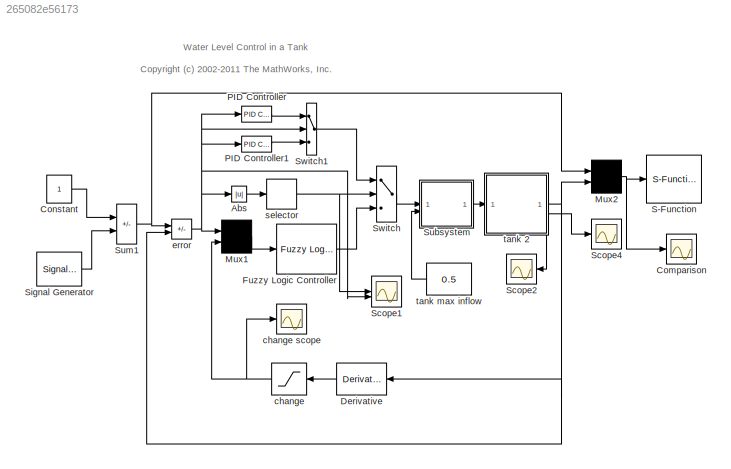
MODEL slx_265082e56173
KIND model
CONFIG AbsTol = 1e-6
CONFIG EnableMultiTasking = off
CONFIG FixedStep = auto
CONFIG MaxStep = 0.2
CONFIG MinStep = auto
CONFIG PreLoadFcn = tank=readfis('tank');
CONFIG RelTol = 1e-3
CONFIG SampleTimeConstraint = Unconstrained
CONFIG SolverName = ode45
CONFIG StartTime = 0
CONFIG StopTime = 10000
BLOCK [Abs] Abs
  SaturateOnIntegerOverflow = off
BLOCK [Scope] Comparison
  Floating = off
  NumInputPorts = 1
  ScopeSpecificationString = Simulink.scopes.TimeScopeBlockCfg('CurrentConfiguration', extmgr.ConfigurationSet(extmgr.Configuration('Core','General UI',true),extmgr.Configuration('Core','Source UI',true),extmgr.Configuration('Sources','WiredSimulink',true,'DataLoggingSaveFormat','Array','DataLoggingLimitDataPoints',true,'DataLoggingDecimation','1','DataLoggingDecimateData',true),extmgr.Configuration('Visuals','Time Domain',tr...<+2284ch>
BLOCK [Constant] Constant
BLOCK [Derivative] Derivative
BLOCK [Reference] Fuzzy Logic Controller  REF=fuzblock/Fuzzy Logic   (lib defined in mdl_858b3b3e7478)
Controller
  SourceBlock = fuzblock/Fuzzy Logic \nController
  SourceType = Fuzzy Inference System
BLOCK [Mux] Mux1
  Inputs = 2
BLOCK [Mux] Mux2
  Inputs = 2
BLOCK [Reference] PID Controller  REF=slpidlib/PID Controller
  SourceBlock = slpidlib/PID Controller
  SourceType = PID 1dof
BLOCK [Reference] PID Controller1  REF=slpidlib/PID Controller
  SourceBlock = slpidlib/PID Controller
  SourceType = PID 1dof
BLOCK [S-Function] S-Function
  EnableBusSupport = off
  FunctionName = animtank
  Parameters = 1
  SFcnIsStateOwnerBlock = off
  SFunctionDeploymentMode = off
BLOCK [Scope] Scope1
  Floating = off
  NumInputPorts = 2
  ScopeSpecificationString = Simulink.scopes.TimeScopeBlockCfg('CurrentConfiguration', extmgr.ConfigurationSet(extmgr.Configuration('Core','General UI',true),extmgr.Configuration('Core','Source UI',true),extmgr.Configuration('Sources','WiredSimulink',true,'DataLoggingSaveFormat','Array','DataLoggingLimitDataPoints',true,'DataLoggingDecimation','1','DataLoggingDecimateData',true,'DataLoggingVariableName','ScopeData1'),extmgr.C...<+1764ch>
BLOCK [Scope] Scope2
  Floating = off
  NumInputPorts = 1
  ScopeSpecificationString = Simulink.scopes.TimeScopeBlockCfg('CurrentConfiguration', extmgr.ConfigurationSet(extmgr.Configuration('Core','General UI',true),extmgr.Configuration('Core','Source UI',true),extmgr.Configuration('Sources','WiredSimulink',true,'DataLoggingSaveFormat','Array','DataLoggingLimitDataPoints',true,'DataLoggingDecimation','1','DataLoggingDecimateData',true),extmgr.Configuration('Visuals','Time Domain',tr...<+1715ch>
BLOCK [Scope] Scope4
  Floating = off
  NumInputPorts = 1
  ScopeSpecificationString = Simulink.scopes.TimeScopeBlockCfg('CurrentConfiguration', extmgr.ConfigurationSet(extmgr.Configuration('Core','General UI',true),extmgr.Configuration('Core','Source UI',true),extmgr.Configuration('Sources','WiredSimulink',true,'DataLoggingSaveFormat','Array','DataLoggingLimitDataPoints',true,'DataLoggingDecimation','1','DataLoggingDecimateData',true),extmgr.Configuration('Visuals','Time Domain',tr...<+1717ch>
BLOCK [SignalGenerator] Signal Generator
  Amplitude = 0.500000
  Frequency = 0.100000
  Units = rad/sec
  WaveForm = square
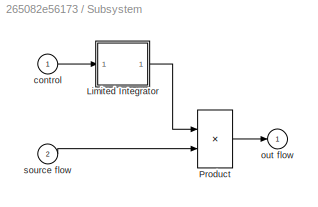
BLOCK [SubSystem] Subsystem
  ShowPortLabels = none
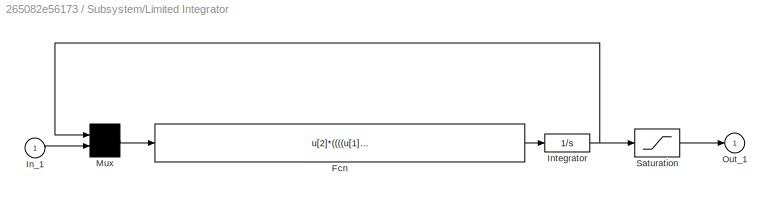
BLOCK [SubSystem] Subsystem/Limited Integrator
  ShowPortLabels = none
BLOCK [Fcn] Subsystem/Limited Integrator/Fcn
  Expr = u[2]*((((u[1]>lb)+(u[2]>=0))>0) * (((u[1]<ub)+(u[2]<=0))>0))
BLOCK [Inport] Subsystem/Limited Integrator/In_1
BLOCK [Integrator] Subsystem/Limited Integrator/Integrator
  InitialCondition = xi
BLOCK [Mux] Subsystem/Limited Integrator/Mux
  Inputs = 2
BLOCK [Outport] Subsystem/Limited Integrator/Out_1
  InitialOutput = 0
BLOCK [Saturate] Subsystem/Limited Integrator/Saturation
  LowerLimit = lb
  UpperLimit = ub
BLOCK [Product] Subsystem/Product
  InputSameDT = on
  OutDataTypeStr = Inherit: Same as first input
  RndMeth = Zero
  SaturateOnIntegerOverflow = on
BLOCK [Inport] Subsystem/control
BLOCK [Outport] Subsystem/out flow
  InitialOutput = 0
BLOCK [Inport] Subsystem/source flow
  Port = 2
BLOCK [Sum] Sum1
  IconShape = rectangular
  InputSameDT = on
  Inputs = +-
  OutDataTypeStr = Inherit: Same as first input
  SaturateOnIntegerOverflow = on
BLOCK [Switch] Switch
BLOCK [Switch] Switch1
BLOCK [Saturate] change
  LowerLimit = -0.1
  UpperLimit = 0.1
BLOCK [Scope] change scope
  Floating = off
  NumInputPorts = 1
  ScopeSpecificationString = Simulink.scopes.TimeScopeBlockCfg('CurrentConfiguration', extmgr.ConfigurationSet(extmgr.Configuration('Core','General UI',true),extmgr.Configuration('Core','Source UI',true),extmgr.Configuration('Sources','WiredSimulink',true,'DataLoggingSaveFormat','Array','DataLoggingLimitDataPoints',true,'DataLoggingDecimation','1','DataLoggingDecimateData',true),extmgr.Configuration('Visuals','Time Domain',tr...<+1734ch>
BLOCK [Sum] error
  IconShape = rectangular
  InputSameDT = on
  Inputs = +-
  OutDataTypeStr = Inherit: Same as first input
  SaturateOnIntegerOverflow = on
BLOCK [Relay] selector
  OffOutputValue = -1
  OffSwitchValue = 0.33
  OnSwitchValue = 0.33
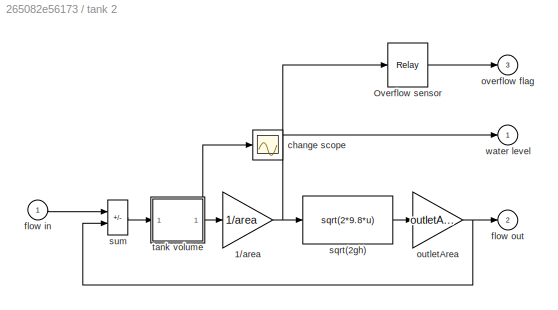
BLOCK [SubSystem] tank 2
  ShowPortLabels = none
BLOCK [Gain] tank 2/1//area
  Gain = 1/area
  OutDataTypeStr = Inherit: Same as input
  ParamDataTypeStr = Inherit: Same as input
  SaturateOnIntegerOverflow = on
BLOCK [Relay] tank 2/Overflow sensor
  OffSwitchValue = ht - overflowLimit
  OnSwitchValue = ht + overflowLimit
BLOCK [Scope] tank 2/change scope
  Floating = off
  NumInputPorts = 1
  ScopeSpecificationString = Simulink.scopes.TimeScopeBlockCfg('CurrentConfiguration', extmgr.ConfigurationSet(extmgr.Configuration('Core','General UI',true),extmgr.Configuration('Core','Source UI',true),extmgr.Configuration('Sources','WiredSimulink',true,'DataLoggingSaveFormat','Array','DataLoggingLimitDataPoints',true,'DataLoggingDecimation','1','DataLoggingDecimateData',true,'DataLoggingVariableName','ScopeData2'),extmgr.C...<+1844ch>
BLOCK [Inport] tank 2/flow in
BLOCK [Outport] tank 2/flow out
  InitialOutput = 0
  Port = 2
BLOCK [Gain] tank 2/outletArea
  Gain = outletArea
  OutDataTypeStr = Inherit: Same as input
  ParamDataTypeStr = Inherit: Same as input
  SaturateOnIntegerOverflow = on
BLOCK [Outport] tank 2/overflow flag
  InitialOutput = 0
  Port = 3
BLOCK [Fcn] tank 2/sqrt(2gh)
  Expr = sqrt(2*9.8*u)
BLOCK [Sum] tank 2/sum
  IconShape = rectangular
  InputSameDT = on
  Inputs = +-
  OutDataTypeStr = Inherit: Same as first input
  SaturateOnIntegerOverflow = on
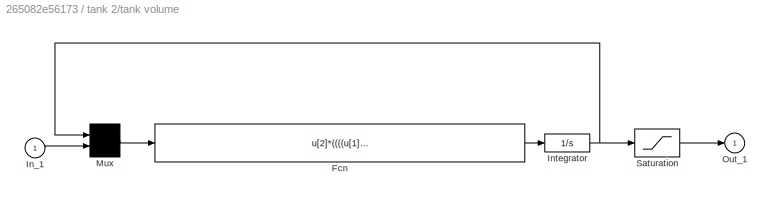
BLOCK [SubSystem] tank 2/tank volume
  ShowPortLabels = none
BLOCK [Fcn] tank 2/tank volume/Fcn
  Expr = u[2]*((((u[1]>lb)+(u[2]>=0))>0) * (((u[1]<ub)+(u[2]<=0))>0))
BLOCK [Inport] tank 2/tank volume/In_1
BLOCK [Integrator] tank 2/tank volume/Integrator
  InitialCondition = xi
BLOCK [Mux] tank 2/tank volume/Mux
  Inputs = 2
BLOCK [Outport] tank 2/tank volume/Out_1
  InitialOutput = 0
BLOCK [Saturate] tank 2/tank volume/Saturation
  LowerLimit = lb
  UpperLimit = ub
BLOCK [Outport] tank 2/water level
  InitialOutput = 0
BLOCK [Constant] tank max inflow
  Value = 0.5
ANNOTATION (root): <copyright redacted>
ANNOTATION (root): Water Level Control in a Tank
LINE Abs:1 -> selector:1
LINE Constant:1 -> Sum1:1
LINE Derivative:1 -> change:1
LINE Fuzzy Logic Controller:1 -> Switch:3
LINE Mux1:1 -> Fuzzy Logic Controller:1
NET Mux2:1 -> Comparison:1, S-Function:1
LINE PID Controller1:1 -> Switch1:3
LINE PID Controller:1 -> Switch1:1
LINE Signal Generator:1 -> Sum1:2
LINE Subsystem/Limited Integrator/Fcn:1 -> Subsystem/Limited Integrator/Integrator:1
LINE Subsystem/Limited Integrator/In_1:1 -> Subsystem/Limited Integrator/Mux:2
NET Subsystem/Limited Integrator/Integrator:1 -> Subsystem/Limited Integrator/Mux:1, Subsystem/Limited Integrator/Saturation:1
LINE Subsystem/Limited Integrator/Mux:1 -> Subsystem/Limited Integrator/Fcn:1
LINE Subsystem/Limited Integrator/Saturation:1 -> Subsystem/Limited Integrator/Out_1:1
LINE Subsystem/Limited Integrator:1 -> Subsystem/Product:1
LINE Subsystem/Product:1 -> Subsystem/out flow:1
LINE Subsystem/control:1 -> Subsystem/Limited Integrator:1
LINE Subsystem/source flow:1 -> Subsystem/Product:2
LINE Subsystem:1 -> tank 2:1
NET Sum1:1 -> Mux2:1, error:1
LINE Switch1:1 -> Switch:1
LINE Switch:1 -> Subsystem:1
NET change:1 -> Mux1:2, change scope:1
NET error:1 -> Abs:1, Mux1:1, PID Controller1:1, PID Controller:1, Scope1:2, Switch1:2
NET selector:1 -> Scope1:1, Switch:2
NET tank 2/1//area:1 -> tank 2/Overflow sensor:1, tank 2/sqrt(2gh):1, tank 2/water level:1
LINE tank 2/Overflow sensor:1 -> tank 2/overflow flag:1
LINE tank 2/flow in:1 -> tank 2/sum:1
NET tank 2/outletArea:1 -> tank 2/flow out:1, tank 2/sum:2
LINE tank 2/sqrt(2gh):1 -> tank 2/outletArea:1
LINE tank 2/sum:1 -> tank 2/tank volume:1
LINE tank 2/tank volume/Fcn:1 -> tank 2/tank volume/Integrator:1
LINE tank 2/tank volume/In_1:1 -> tank 2/tank volume/Mux:2
NET tank 2/tank volume/Integrator:1 -> tank 2/tank volume/Mux:1, tank 2/tank volume/Saturation:1
LINE tank 2/tank volume/Mux:1 -> tank 2/tank volume/Fcn:1
LINE tank 2/tank volume/Saturation:1 -> tank 2/tank volume/Out_1:1
NET tank 2/tank volume:1 -> tank 2/1//area:1, tank 2/change scope:1
NET tank 2:1 -> Derivative:1, Mux2:2, error:2
LINE tank 2:2 -> Scope4:1
LINE tank 2:3 -> Scope2:1
LINE tank max inflow:1 -> Subsystem:2
note: NET lines group one-source signal fan-out (src -> all destinations, sorted); 1:1 wires keep LINE
